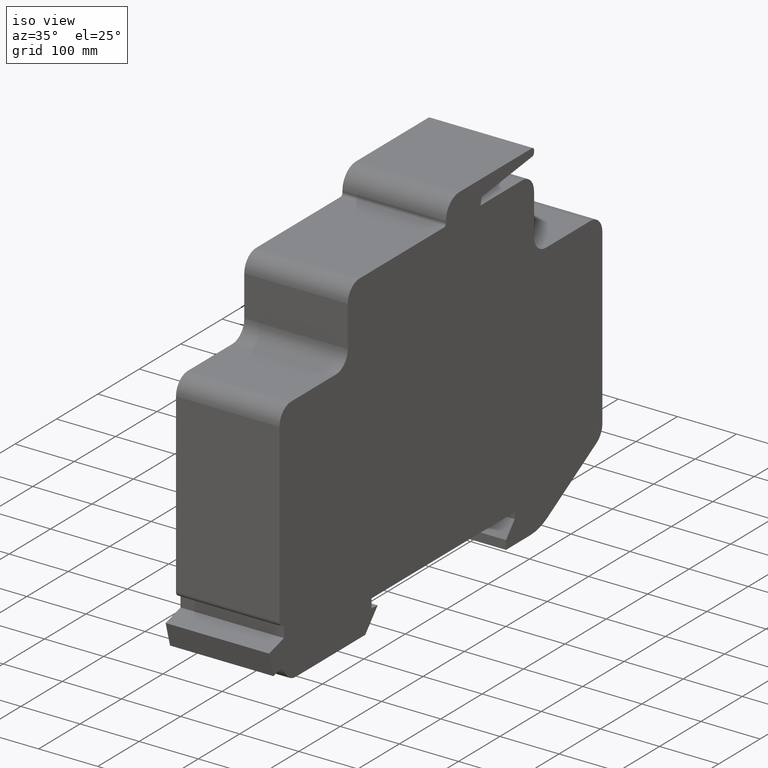
[diagram: clean part render]
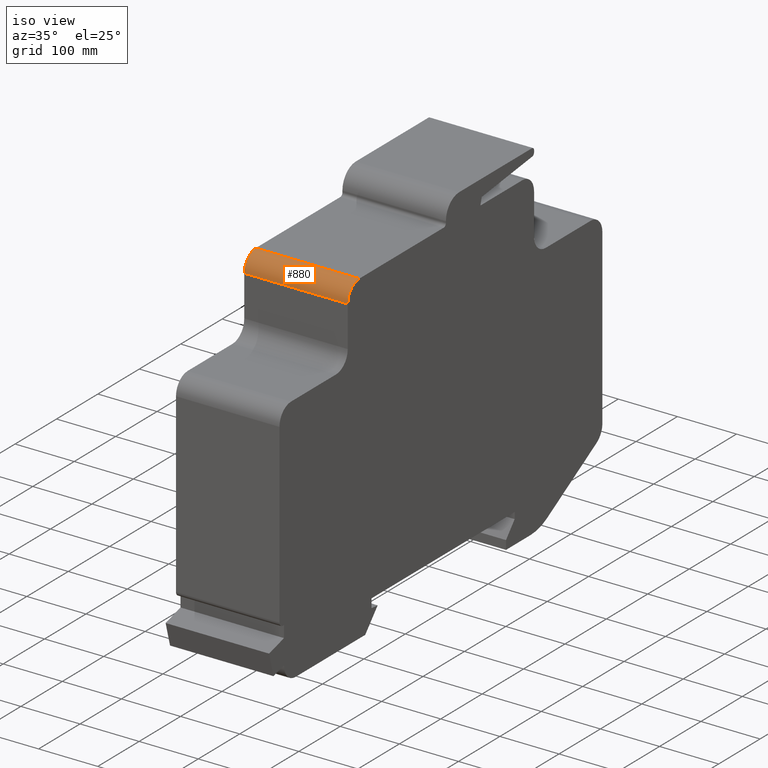
[diagram: same view with one face highlighted and labeled with its STEP entity id]
A machine part, iso view. The second image highlights one B-rep face of the part: STEP entity #880.
In plain terms, the highlighted cylindrical surface (edge-blend (fillet) strip) has radius 28 mm, axis along (1, 0, 0).
Its self-contained STEP definition (entity closure, byte-faithful):
#822=CARTESIAN_POINT('',(175.00000000000028,-403.20000000000022,472.0));
#823=VERTEX_POINT('',#822);
#830=CARTESIAN_POINT('',(0.0,-403.20000000000022,472.0));
#831=VERTEX_POINT('',#830);
#832=CARTESIAN_POINT('',(0.0,-403.20000000000022,472.0));
#833=DIRECTION('',(1.0,0.0,0.0));
#834=VECTOR('',#833,175.00000000000028);
#835=LINE('',#832,#834);
#836=EDGE_CURVE('',#831,#823,#835,.T.);
#848=CARTESIAN_POINT('',(0.0,-375.20000000000027,471.99999999999989));
#849=DIRECTION('',(1.0,0.0,0.0));
#850=DIRECTION('',(0.0,-0.707106781186545,0.70710678118655));
#851=AXIS2_PLACEMENT_3D('',#848,#849,#850);
#852=CYLINDRICAL_SURFACE('',#851,28.000000000000004);
#853=CARTESIAN_POINT('',(175.00000000000028,-375.2000000000001,499.99999999999994));
#854=VERTEX_POINT('',#853);
#855=CARTESIAN_POINT('',(175.00000000000028,-375.20000000000027,471.99999999999989));
#856=DIRECTION('',(-1.0,0.0,0.0));
#857=DIRECTION('',(0.0,-0.707106781186545,0.70710678118655));
#858=AXIS2_PLACEMENT_3D('',#855,#856,#857);
#859=CIRCLE('',#858,28.000000000000004);
#860=EDGE_CURVE('',#823,#854,#859,.T.);
#861=ORIENTED_EDGE('',*,*,#860,.T.);
#862=CARTESIAN_POINT('',(0.0,-375.2000000000001,499.99999999999994));
#863=VERTEX_POINT('',#862);
#864=CARTESIAN_POINT('',(0.0,-375.2000000000001,499.99999999999994));
#865=DIRECTION('',(1.0,0.0,0.0));
#866=VECTOR('',#865,175.00000000000028);
#867=LINE('',#864,#866);
#868=EDGE_CURVE('',#863,#854,#867,.T.);
#869=ORIENTED_EDGE('',*,*,#868,.F.);
#870=CARTESIAN_POINT('',(0.0,-375.20000000000027,471.99999999999989));
#871=DIRECTION('',(-1.0,0.0,0.0));
#872=DIRECTION('',(0.0,-0.707106781186545,0.70710678118655));
#873=AXIS2_PLACEMENT_3D('',#870,#871,#872);
#874=CIRCLE('',#873,28.000000000000004);
#875=EDGE_CURVE('',#831,#863,#874,.T.);
#876=ORIENTED_EDGE('',*,*,#875,.F.);
#877=ORIENTED_EDGE('',*,*,#836,.T.);
#878=EDGE_LOOP('',(#861,#869,#876,#877));
#879=FACE_OUTER_BOUND('',#878,.T.);
#880=ADVANCED_FACE('',(#879),#852,.T.);